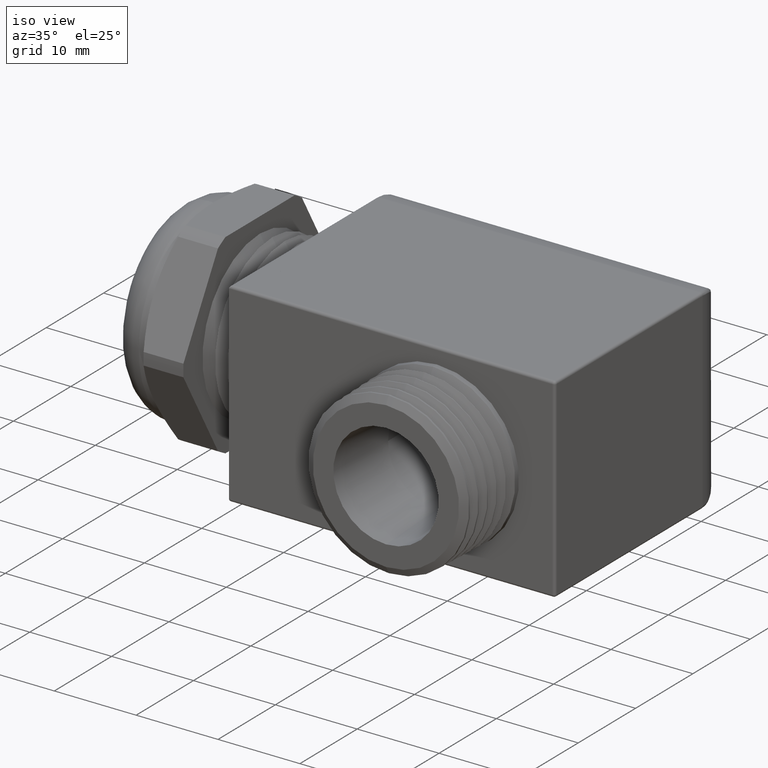
[diagram: clean part render]
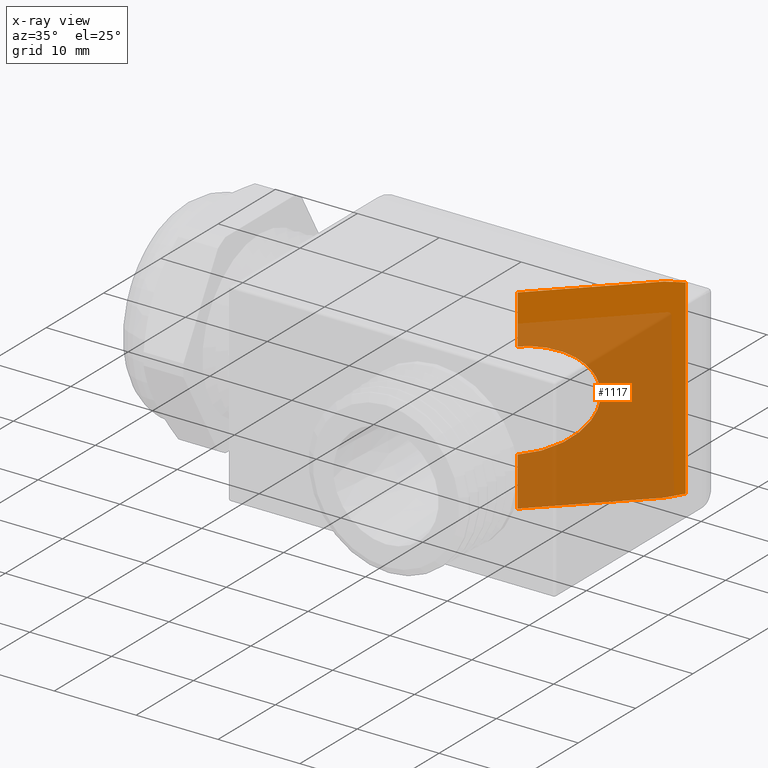
[diagram: x-ray — body ghosted, one internal face saturated and labeled with its STEP entity id]
A machine part, iso view, then the same camera in x-ray: the body is ghosted and one INTERNAL B-rep face — a face not visible from any outside direction — is saturated and labeled: STEP entity #1117.
In plain terms, the highlighted planar face has unit normal (-0.7071, 0.7071, 0).
Its self-contained STEP definition (entity closure, byte-faithful):
#1078 = VERTEX_POINT ( 'NONE', #3447 ) ;
#1095 = VERTEX_POINT ( 'NONE', #3462 ) ;
#1117 = ADVANCED_FACE ( 'NONE', ( #3480 ), #3479, .T. ) ;
#1118 = EDGE_LOOP ( 'NONE', ( #1119, #1122, #1124, #1127, #1130, #1133, #1136, #1139 ) ) ;
#1119 = ORIENTED_EDGE ( 'NONE', *, *, #1120, .T. ) ;
#1120 = EDGE_CURVE ( 'NONE', #1121, #1078, #3474, .T. ) ;
#1121 = VERTEX_POINT ( 'NONE', #3470 ) ;
#1122 = ORIENTED_EDGE ( 'NONE', *, *, #1123, .T. ) ;
#1123 = EDGE_CURVE ( 'NONE', #1078, #1095, #3653, .T. ) ;
#1124 = ORIENTED_EDGE ( 'NONE', *, *, #1125, .T. ) ;
#1125 = EDGE_CURVE ( 'NONE', #1095, #1126, #3592, .T. ) ;
#1126 = VERTEX_POINT ( 'NONE', #3736 ) ;
#1127 = ORIENTED_EDGE ( 'NONE', *, *, #1128, .T. ) ;
#1128 = EDGE_CURVE ( 'NONE', #1126, #1129, #3587, .T. ) ;
#1129 = VERTEX_POINT ( 'NONE', #3706 ) ;
#1130 = ORIENTED_EDGE ( 'NONE', *, *, #1131, .F. ) ;
#1131 = EDGE_CURVE ( 'NONE', #1132, #1129, #3605, .T. ) ;
#1132 = VERTEX_POINT ( 'NONE', #3632 ) ;
#1133 = ORIENTED_EDGE ( 'NONE', *, *, #1134, .F. ) ;
#1134 = EDGE_CURVE ( 'NONE', #1135, #1132, #3597, .T. ) ;
#1135 = VERTEX_POINT ( 'NONE', #3593 ) ;
#1136 = ORIENTED_EDGE ( 'NONE', *, *, #1137, .F. ) ;
#1137 = EDGE_CURVE ( 'NONE', #1138, #1135, #3718, .T. ) ;
#1138 = VERTEX_POINT ( 'NONE', #3717 ) ;
#1139 = ORIENTED_EDGE ( 'NONE', *, *, #1140, .T. ) ;
#1140 = EDGE_CURVE ( 'NONE', #1138, #1121, #3662, .T. ) ;
#3447 = CARTESIAN_POINT ( 'NONE',  ( 0.9679999999999955300, 0.0000000000000000000, -0.2349999999999999900 ) ) ;
#3462 = CARTESIAN_POINT ( 'NONE',  ( 0.9679999999999955300, 1.616321989494814500E-017, 0.2349999999999999900 ) ) ;
#3470 = CARTESIAN_POINT ( 'NONE',  ( 0.9679999999999955300, -6.137788176939979800E-018, -0.4700000000000000300 ) ) ;
#3471 = DIRECTION ( 'NONE',  ( 0.0000000000000000000, 0.0000000000000000000, 1.000000000000000000 ) ) ;
#3472 = VECTOR ( 'NONE', #3471, 39.37007874015748100 ) ;
#3473 = CARTESIAN_POINT ( 'NONE',  ( 0.9679999999999955300, 0.0000000000000000000, -0.4703937007874016700 ) ) ;
#3474 = LINE ( 'NONE', #3473, #3472 ) ;
#3475 = DIRECTION ( 'NONE',  ( -0.7071067811865509000, -0.7071067811865441300, 0.0000000000000000000 ) ) ;
#3476 = DIRECTION ( 'NONE',  ( -0.7071067811865441300, 0.7071067811865509000, 0.0000000000000000000 ) ) ;
#3477 = CARTESIAN_POINT ( 'NONE',  ( 1.443555555555555700, 0.4755555555555555100, -0.4703937007874016700 ) ) ;
#3478 = AXIS2_PLACEMENT_3D ( 'NONE', #3477, #3476, #3475 ) ;
#3479 = PLANE ( 'NONE',  #3478 ) ;
#3480 = FACE_OUTER_BOUND ( 'NONE', #1118, .T. ) ;
#3587 = LINE ( 'NONE', #3709, #3708 ) ;
#3588 = CARTESIAN_POINT ( 'NONE',  ( 1.381333333333332900, 0.4133333333333332200, -0.4700000000000000300 ) ) ;
#3589 = CARTESIAN_POINT ( 'NONE',  ( 1.381333333333332900, 0.4133333333333332700, 0.4699999999999999200 ) ) ;
#3590 = CARTESIAN_POINT ( 'NONE',  ( 1.402581134423580800, 0.4345811344235809300, 0.4699999999999999200 ) ) ;
#3591 = CARTESIAN_POINT ( 'NONE',  ( 1.423522936573932800, 0.4555229365739327800, 0.4664069547920675600 ) ) ;
#3592 = LINE ( 'NONE', #3739, #3738 ) ;
#3593 = CARTESIAN_POINT ( 'NONE',  ( 1.443555555555555700, 0.4755555555555555100, -0.4593243544286518300 ) ) ;
#3594 = DIRECTION ( 'NONE',  ( 0.0000000000000000000, 0.0000000000000000000, 1.000000000000000000 ) ) ;
#3595 = VECTOR ( 'NONE', #3594, 39.37007874015748100 ) ;
#3596 = CARTESIAN_POINT ( 'NONE',  ( 1.443555555555555700, 0.4755555555555555100, -0.4703937007874016700 ) ) ;
#3597 = LINE ( 'NONE', #3596, #3595 ) ;
#3605 =( BOUNDED_CURVE ( )  B_SPLINE_CURVE ( 3, ( #3689, #3591, #3590, #3589 ),
 .UNSPECIFIED., .F., .T. ) 
 B_SPLINE_CURVE_WITH_KNOTS ( ( 4, 4 ),
 ( 1.230959417340774700, 1.570796326794896800 ),
 .UNSPECIFIED. ) 
 CURVE ( )  GEOMETRIC_REPRESENTATION_ITEM ( )  RATIONAL_B_SPLINE_CURVE ( ( 1.000000000000000000, 0.9903990397689925700, 0.9903990397689925700, 1.000000000000000000 ) ) 
 REPRESENTATION_ITEM ( '' )  );
#3632 = CARTESIAN_POINT ( 'NONE',  ( 1.443555555555555700, 0.4755555555555555100, 0.4593243544286516600 ) ) ;
#3640 = CARTESIAN_POINT ( 'NONE',  ( 1.438000000000000200, 0.4699999999999999700, -0.2349999999999998500 ) ) ;
#3653 =( BOUNDED_CURVE ( )  B_SPLINE_CURVE ( 3, ( #3710, #3640, #3664, #3663 ),
 .UNSPECIFIED., .F., .T. ) 
 B_SPLINE_CURVE_WITH_KNOTS ( ( 4, 4 ),
 ( 1.570796326794896800, 4.712388980384689700 ),
 .UNSPECIFIED. ) 
 CURVE ( )  GEOMETRIC_REPRESENTATION_ITEM ( )  RATIONAL_B_SPLINE_CURVE ( ( 1.000000000000000000, 0.3333333333333333100, 0.3333333333333333100, 1.000000000000000000 ) ) 
 REPRESENTATION_ITEM ( '' )  );
#3662 = LINE ( 'NONE', #3667, #3666 ) ;
#3663 = CARTESIAN_POINT ( 'NONE',  ( 0.9679999999999955300, 1.616321989494814500E-017, 0.2349999999999999900 ) ) ;
#3664 = CARTESIAN_POINT ( 'NONE',  ( 1.438000000000000200, 0.4699999999999999700, 0.2349999999999998500 ) ) ;
#3665 = DIRECTION ( 'NONE',  ( -0.7071067811865509000, -0.7071067811865441300, 0.0000000000000000000 ) ) ;
#3666 = VECTOR ( 'NONE', #3665, 39.37007874015748100 ) ;
#3667 = CARTESIAN_POINT ( 'NONE',  ( 0.9817780020556736700, 0.01377800205567789200, -0.4700000000000000300 ) ) ;
#3679 = CARTESIAN_POINT ( 'NONE',  ( 1.443555555555555700, 0.4755555555555555100, -0.4593243544286518300 ) ) ;
#3680 = CARTESIAN_POINT ( 'NONE',  ( 1.423522936573932800, 0.4555229365739327800, -0.4664069547920677800 ) ) ;
#3681 = CARTESIAN_POINT ( 'NONE',  ( 1.402581134423580800, 0.4345811344235808700, -0.4700000000000000300 ) ) ;
#3689 = CARTESIAN_POINT ( 'NONE',  ( 1.443555555555555700, 0.4755555555555555100, 0.4593243544286516600 ) ) ;
#3706 = CARTESIAN_POINT ( 'NONE',  ( 1.381333333333332900, 0.4133333333333332700, 0.4699999999999999200 ) ) ;
#3707 = DIRECTION ( 'NONE',  ( 0.7071067811865509000, 0.7071067811865441300, 0.0000000000000000000 ) ) ;
#3708 = VECTOR ( 'NONE', #3707, 39.37007874015748100 ) ;
#3709 = CARTESIAN_POINT ( 'NONE',  ( 1.218836982058541400, 0.2508369820585433200, 0.4699999999999999200 ) ) ;
#3710 = CARTESIAN_POINT ( 'NONE',  ( 0.9679999999999955300, 0.0000000000000000000, -0.2349999999999999900 ) ) ;
#3717 = CARTESIAN_POINT ( 'NONE',  ( 1.381333333333332900, 0.4133333333333332200, -0.4700000000000000300 ) ) ;
#3718 =( BOUNDED_CURVE ( )  B_SPLINE_CURVE ( 3, ( #3588, #3681, #3680, #3679 ),
 .UNSPECIFIED., .F., .T. ) 
 B_SPLINE_CURVE_WITH_KNOTS ( ( 4, 4 ),
 ( 4.712388980384689700, 5.052225889838812400 ),
 .UNSPECIFIED. ) 
 CURVE ( )  GEOMETRIC_REPRESENTATION_ITEM ( )  RATIONAL_B_SPLINE_CURVE ( ( 1.000000000000000000, 0.9903990397689925700, 0.9903990397689925700, 1.000000000000000000 ) ) 
 REPRESENTATION_ITEM ( '' )  );
#3736 = CARTESIAN_POINT ( 'NONE',  ( 0.9679999999999955300, -6.137788176939979800E-018, 0.4699999999999999200 ) ) ;
#3737 = DIRECTION ( 'NONE',  ( 0.0000000000000000000, 0.0000000000000000000, 1.000000000000000000 ) ) ;
#3738 = VECTOR ( 'NONE', #3737, 39.37007874015748100 ) ;
#3739 = CARTESIAN_POINT ( 'NONE',  ( 0.9679999999999955300, 0.0000000000000000000, -0.4703937007874016700 ) ) ;